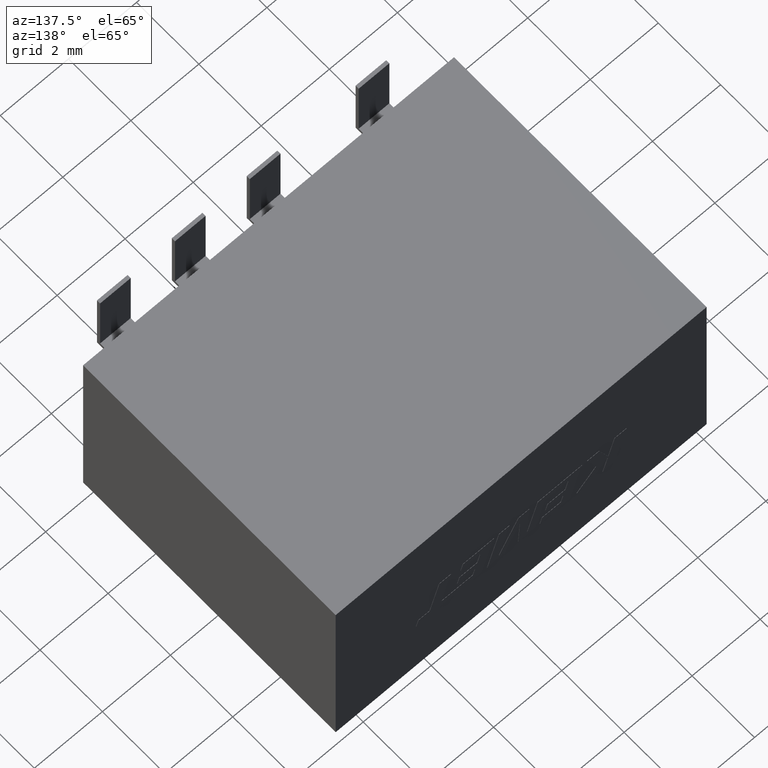
[diagram: clean part render]
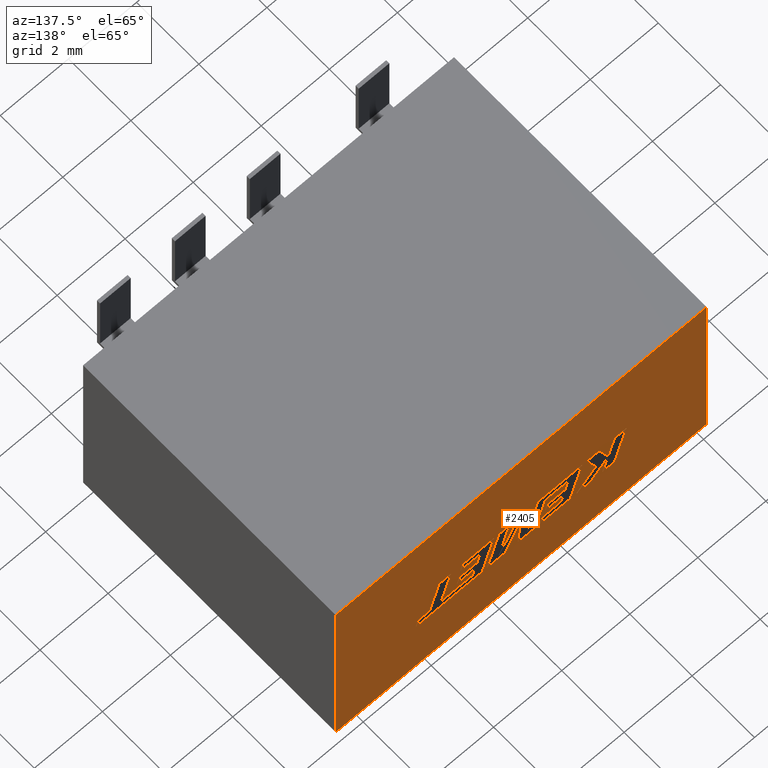
[diagram: same view with one face highlighted and labeled with its STEP entity id]
A machine part, auxiliary view. The second image highlights one B-rep face of the part: STEP entity #2405.
In plain terms, the highlighted planar face has unit normal (0, -1, 0).
Its self-contained STEP definition (entity closure, byte-faithful):
#8 = CARTESIAN_POINT ( 'NONE',  ( 5.539390621562711600, 8.099999999999999600, -4.005847300287459900 ) ) ;
#14 = EDGE_CURVE ( 'NONE', #2080, #327, #1104, .T. ) ;
#26 = CARTESIAN_POINT ( 'NONE',  ( 5.921493520004887900, 8.099999999999999600, -4.005847300287459900 ) ) ;
#50 = VECTOR ( 'NONE', #1758, 1000.000000000000100 ) ;
#57 = CARTESIAN_POINT ( 'NONE',  ( 5.536347990406461900, 8.099999999999999600, -2.796156569781385000 ) ) ;
#60 = ORIENTED_EDGE ( 'NONE', *, *, #3112, .F. ) ;
#65 = VERTEX_POINT ( 'NONE', #4349 ) ;
#73 = CARTESIAN_POINT ( 'NONE',  ( 8.141397164137124800, 8.099999999999999600, -3.772278509415951200 ) ) ;
#79 = EDGE_CURVE ( 'NONE', #1904, #2804, #431, .T. ) ;
#92 = DIRECTION ( 'NONE',  ( 0.2732148821745935000, 0.0000000000000000000, -0.9619530280415582400 ) ) ;
#100 = LINE ( 'NONE', #185, #2055 ) ;
#128 = DIRECTION ( 'NONE',  ( -1.000000000000000000, 0.0000000000000000000, 0.0000000000000000000 ) ) ;
#130 = DIRECTION ( 'NONE',  ( 1.000000000000000000, 0.0000000000000000000, 0.0000000000000000000 ) ) ;
#134 = CARTESIAN_POINT ( 'NONE',  ( 2.710509850445662000, 8.099999999999999600, -4.005847300287459900 ) ) ;
#136 = ORIENTED_EDGE ( 'NONE', *, *, #762, .F. ) ;
#145 = CARTESIAN_POINT ( 'NONE',  ( 6.874775397190843400, 8.099999999999999600, -3.775548420996927200 ) ) ;
#151 = CARTESIAN_POINT ( 'NONE',  ( 5.796859528522962700, 8.099999999999999600, -2.796156569781385000 ) ) ;
#156 = EDGE_CURVE ( 'NONE', #2746, #2903, #3197, .T. ) ;
#160 = ORIENTED_EDGE ( 'NONE', *, *, #4494, .F. ) ;
#168 = DIRECTION ( 'NONE',  ( 1.000000000000000000, 0.0000000000000000000, 0.0000000000000000000 ) ) ;
#172 = ORIENTED_EDGE ( 'NONE', *, *, #3033, .F. ) ;
#180 = CARTESIAN_POINT ( 'NONE',  ( 5.213855259948116900, 8.099999999999999600, -2.796156569781385000 ) ) ;
#185 = CARTESIAN_POINT ( 'NONE',  ( 6.107615152295324800, 8.099999999999999600, -3.878298679620998200 ) ) ;
#219 = VERTEX_POINT ( 'NONE', #576 ) ;
#234 = EDGE_CURVE ( 'NONE', #327, #3218, #1947, .T. ) ;
#261 = LINE ( 'NONE', #2111, #3396 ) ;
#293 = VECTOR ( 'NONE', #3123, 1000.000000000000000 ) ;
#294 = EDGE_CURVE ( 'NONE', #2649, #3470, #2526, .T. ) ;
#306 = CARTESIAN_POINT ( 'NONE',  ( 3.526825435563525300, 8.099999999999999600, -2.796156569781385000 ) ) ;
#311 = VECTOR ( 'NONE', #3831, 1000.000000000000000 ) ;
#313 = ORIENTED_EDGE ( 'NONE', *, *, #3370, .F. ) ;
#318 = LINE ( 'NONE', #1277, #2691 ) ;
#327 = VERTEX_POINT ( 'NONE', #3824 ) ;
#336 = VERTEX_POINT ( 'NONE', #2452 ) ;
#344 = VECTOR ( 'NONE', #1712, 1000.000000000000100 ) ;
#349 = VECTOR ( 'NONE', #128, 1000.000000000000000 ) ;
#351 = CARTESIAN_POINT ( 'NONE',  ( 4.740762688357050600, 8.099999999999999600, -3.550586596489033700 ) ) ;
#352 = LINE ( 'NONE', #3845, #4388 ) ;
#355 = DIRECTION ( 'NONE',  ( 0.7145695586381791700, -0.0000000000000000000, -0.6995643972270443300 ) ) ;
#358 = VERTEX_POINT ( 'NONE', #3511 ) ;
#361 = EDGE_CURVE ( 'NONE', #391, #4439, #3943, .T. ) ;
#386 = EDGE_CURVE ( 'NONE', #3212, #4302, #3178, .T. ) ;
#391 = VERTEX_POINT ( 'NONE', #799 ) ;
#396 = PLANE ( 'NONE',  #1085 ) ;
#402 = CARTESIAN_POINT ( 'NONE',  ( 3.421187798171672100, 8.099999999999999600, -4.005847300287459900 ) ) ;
#407 = VECTOR ( 'NONE', #3675, 1000.000000000000200 ) ;
#412 = CARTESIAN_POINT ( 'NONE',  ( 7.860832130047842100, 8.099999999999999600, -2.796156569781384600 ) ) ;
#417 = CARTESIAN_POINT ( 'NONE',  ( 8.472599322535460300, 8.099999999999999600, -3.772252215782888800 ) ) ;
#421 = EDGE_CURVE ( 'NONE', #1011, #2978, #1184, .T. ) ;
#430 = CARTESIAN_POINT ( 'NONE',  ( 5.921493520004887900, 8.099999999999999600, -4.005847300287459900 ) ) ;
#431 = LINE ( 'NONE', #151, #3078 ) ;
#472 = CARTESIAN_POINT ( 'NONE',  ( 4.742667991162439200, 8.099999999999999600, -3.026300965061103500 ) ) ;
#487 = CARTESIAN_POINT ( 'NONE',  ( 5.492869375179180800, 8.099999999999999600, -3.141628699794906800 ) ) ;
#488 = VERTEX_POINT ( 'NONE', #2528 ) ;
#489 = VERTEX_POINT ( 'NONE', #785 ) ;
#490 = VERTEX_POINT ( 'NONE', #1473 ) ;
#501 = CARTESIAN_POINT ( 'NONE',  ( 2.706846371486650900, 8.099999999999999600, -2.796156569781384600 ) ) ;
#522 = EDGE_CURVE ( 'NONE', #3521, #65, #571, .T. ) ;
#571 = LINE ( 'NONE', #4310, #868 ) ;
#576 = CARTESIAN_POINT ( 'NONE',  ( 6.659682158465106000, 8.099999999999999600, -3.026345103347022100 ) ) ;
#584 = DIRECTION ( 'NONE',  ( 1.000000000000000000, -0.0000000000000000000, -0.0000000000000000000 ) ) ;
#588 = CARTESIAN_POINT ( 'NONE',  ( 4.742667991162439200, 8.099999999999999600, -3.026300965061103500 ) ) ;
#600 = ORIENTED_EDGE ( 'NONE', *, *, #1828, .F. ) ;
#608 = CARTESIAN_POINT ( 'NONE',  ( 7.516237151367949600, 8.099999999999999600, -2.796156569781385500 ) ) ;
#609 = EDGE_CURVE ( 'NONE', #3145, #4472, #3828, .T. ) ;
#616 = VERTEX_POINT ( 'NONE', #1858 ) ;
#618 = EDGE_CURVE ( 'NONE', #489, #490, #4157, .T. ) ;
#621 = EDGE_CURVE ( 'NONE', #1958, #3756, #4223, .T. ) ;
#635 = CARTESIAN_POINT ( 'NONE',  ( 7.264560627435020700, 8.099999999999999600, -3.326956277028809300 ) ) ;
#646 = ORIENTED_EDGE ( 'NONE', *, *, #4050, .F. ) ;
#648 = EDGE_LOOP ( 'NONE', ( #2705, #1951, #1170, #3834 ) ) ;
#650 = VECTOR ( 'NONE', #3587, 1000.000000000000000 ) ;
#677 = LINE ( 'NONE', #73, #1674 ) ;
#692 = VECTOR ( 'NONE', #4190, 1000.000000000000000 ) ;
#703 = VERTEX_POINT ( 'NONE', #4446 ) ;
#718 = CARTESIAN_POINT ( 'NONE',  ( 5.274221726550668300, 8.099999999999999600, -3.873112430664818400 ) ) ;
#722 = CARTESIAN_POINT ( 'NONE',  ( 6.745501705062949300, 8.099999999999999600, -3.326956277028808800 ) ) ;
#731 = CARTESIAN_POINT ( 'NONE',  ( 7.163800270007336700, 8.099999999999999600, -2.796156569781385900 ) ) ;
#736 = CARTESIAN_POINT ( 'NONE',  ( 3.054950345114026100, 8.099999999999999600, -4.005847300287459900 ) ) ;
#748 = ORIENTED_EDGE ( 'NONE', *, *, #618, .F. ) ;
#750 = ORIENTED_EDGE ( 'NONE', *, *, #421, .F. ) ;
#762 = EDGE_CURVE ( 'NONE', #2804, #1011, #3272, .T. ) ;
#779 = EDGE_CURVE ( 'NONE', #1988, #3344, #1453, .T. ) ;
#785 = CARTESIAN_POINT ( 'NONE',  ( 2.895107208685131300, 8.099999999999999600, -3.452985804915531500 ) ) ;
#799 = CARTESIAN_POINT ( 'NONE',  ( 5.536347990406461900, 8.099999999999999600, -2.796156569781384600 ) ) ;
#804 = ORIENTED_EDGE ( 'NONE', *, *, #4086, .F. ) ;
#806 = ORIENTED_EDGE ( 'NONE', *, *, #1773, .F. ) ;
#814 = VECTOR ( 'NONE', #4445, 1000.000000000000200 ) ;
#830 = CARTESIAN_POINT ( 'NONE',  ( 2.362865651633439400, 8.099999999999999600, -2.796156569781385000 ) ) ;
#835 = DIRECTION ( 'NONE',  ( 0.2793947940814881500, 0.0000000000000000000, -0.9601763114346045800 ) ) ;
#837 = VERTEX_POINT ( 'NONE', #1628 ) ;
#838 = LINE ( 'NONE', #351, #3393 ) ;
#849 = CARTESIAN_POINT ( 'NONE',  ( 5.274221726550668300, 8.099999999999999600, -3.873112430664818400 ) ) ;
#857 = DIRECTION ( 'NONE',  ( 0.9999891854650020400, 0.0000000000000000000, 0.004650693823681494600 ) ) ;
#866 = CARTESIAN_POINT ( 'NONE',  ( 6.597792921863392800, 8.099999999999999600, -4.005847300287459900 ) ) ;
#868 = VECTOR ( 'NONE', #2174, 1000.000000000000000 ) ;
#871 = VECTOR ( 'NONE', #2748, 1000.000000000000100 ) ;
#880 = EDGE_CURVE ( 'NONE', #2254, #1425, #1130, .T. ) ;
#913 = EDGE_CURVE ( 'NONE', #3344, #489, #3822, .T. ) ;
#926 = CARTESIAN_POINT ( 'NONE',  ( 0.0000000000000000000, 8.099999999999999600, -6.000000000000000000 ) ) ;
#927 = LINE ( 'NONE', #2165, #3911 ) ;
#929 = ORIENTED_EDGE ( 'NONE', *, *, #1711, .F. ) ;
#947 = VECTOR ( 'NONE', #2952, 1000.000000000000100 ) ;
#954 = EDGE_CURVE ( 'NONE', #1551, #2649, #1977, .T. ) ;
#960 = ORIENTED_EDGE ( 'NONE', *, *, #880, .F. ) ;
#980 = DIRECTION ( 'NONE',  ( -1.000000000000000000, 0.0000000000000000000, 0.0000000000000000000 ) ) ;
#989 = VECTOR ( 'NONE', #2798, 1000.000000000000100 ) ;
#990 = CARTESIAN_POINT ( 'NONE',  ( 7.516237151367949600, 8.099999999999999600, -2.796156569781385500 ) ) ;
#993 = ORIENTED_EDGE ( 'NONE', *, *, #2934, .F. ) ;
#1004 = CARTESIAN_POINT ( 'NONE',  ( 4.009887795221451300, 8.099999999999999600, -4.005847300287459900 ) ) ;
#1011 = VERTEX_POINT ( 'NONE', #4201 ) ;
#1021 = CARTESIAN_POINT ( 'NONE',  ( 6.107615152295325700, 8.099999999999999600, -3.878298679620999100 ) ) ;
#1079 = VECTOR ( 'NONE', #4326, 1000.000000000000200 ) ;
#1085 = AXIS2_PLACEMENT_3D ( 'NONE', #3155, #3499, #1732 ) ;
#1104 = LINE ( 'NONE', #4312, #2003 ) ;
#1130 = LINE ( 'NONE', #2501, #344 ) ;
#1133 = VECTOR ( 'NONE', #4321, 1000.000000000000100 ) ;
#1134 = CARTESIAN_POINT ( 'NONE',  ( 6.452055646963577500, 8.099999999999999600, -4.005847300287459900 ) ) ;
#1161 = DIRECTION ( 'NONE',  ( -1.000000000000000000, -0.0000000000000000000, -0.0000000000000000000 ) ) ;
#1170 = ORIENTED_EDGE ( 'NONE', *, *, #4264, .T. ) ;
#1184 = LINE ( 'NONE', #1134, #349 ) ;
#1185 = CARTESIAN_POINT ( 'NONE',  ( 8.539730510658420900, 8.099999999999999600, -4.005847300287459900 ) ) ;
#1188 = EDGE_CURVE ( 'NONE', #4122, #219, #352, .T. ) ;
#1193 = VECTOR ( 'NONE', #1406, 1000.000000000000200 ) ;
#1209 = VERTEX_POINT ( 'NONE', #402 ) ;
#1211 = VECTOR ( 'NONE', #4146, 1000.000000000000100 ) ;
#1224 = EDGE_CURVE ( 'NONE', #4462, #703, #2272, .T. ) ;
#1235 = VECTOR ( 'NONE', #2844, 1000.000000000000000 ) ;
#1245 = EDGE_CURVE ( 'NONE', #3150, #2256, #4111, .T. ) ;
#1256 = ORIENTED_EDGE ( 'NONE', *, *, #2788, .F. ) ;
#1263 = CARTESIAN_POINT ( 'NONE',  ( 4.964996230130207500, 8.099999999999999600, -2.796156569781383700 ) ) ;
#1266 = CARTESIAN_POINT ( 'NONE',  ( 4.903566767372225900, 8.099999999999999600, -4.005847300287459900 ) ) ;
#1270 = DIRECTION ( 'NONE',  ( 1.000000000000000000, 0.0000000000000000000, 0.0000000000000000000 ) ) ;
#1277 = CARTESIAN_POINT ( 'NONE',  ( 7.860832130047842100, 8.099999999999999600, -2.796156569781385500 ) ) ;
#1289 = ORIENTED_EDGE ( 'NONE', *, *, #156, .F. ) ;
#1292 = CARTESIAN_POINT ( 'NONE',  ( 6.104260642330714900, 8.099999999999999600, -2.796156569781384600 ) ) ;
#1307 = VECTOR ( 'NONE', #1668, 1000.000000000000100 ) ;
#1312 = VERTEX_POINT ( 'NONE', #1512 ) ;
#1323 = CARTESIAN_POINT ( 'NONE',  ( 7.328436088013573300, 8.099999999999999600, -3.550546136388770300 ) ) ;
#1324 = ORIENTED_EDGE ( 'NONE', *, *, #361, .F. ) ;
#1338 = CARTESIAN_POINT ( 'NONE',  ( 4.287021077339293400, 8.099999999999999600, -3.775588881096553400 ) ) ;
#1339 = EDGE_CURVE ( 'NONE', #2374, #1209, #2672, .T. ) ;
#1341 = CARTESIAN_POINT ( 'NONE',  ( 3.819285739512695300, 8.099999999999999600, -4.005847300287459900 ) ) ;
#1361 = CARTESIAN_POINT ( 'NONE',  ( 3.254565756188929200, 8.099999999999999600, -3.452985804915538600 ) ) ;
#1399 = CARTESIAN_POINT ( 'NONE',  ( 3.054950345114026100, 8.099999999999999600, -4.005847300287459900 ) ) ;
#1404 = VECTOR ( 'NONE', #3304, 1000.000000000000000 ) ;
#1406 = DIRECTION ( 'NONE',  ( 0.2746459304916855600, 0.0000000000000000000, -0.9615454294334491200 ) ) ;
#1425 = VERTEX_POINT ( 'NONE', #588 ) ;
#1427 = DIRECTION ( 'NONE',  ( -1.000000000000000000, 0.0000000000000000000, 0.0000000000000000000 ) ) ;
#1433 = EDGE_LOOP ( 'NONE', ( #600, #4508, #3460, #3695, #313, #2637, #3514, #1635, #3249, #2370, #4199, #4359, #929, #1256, #4479, #3101, #4451 ) ) ;
#1449 = VECTOR ( 'NONE', #1596, 1000.000000000000000 ) ;
#1453 = LINE ( 'NONE', #2648, #2209 ) ;
#1455 = DIRECTION ( 'NONE',  ( 0.2762033010287792100, 0.0000000000000000000, -0.9610992334305577000 ) ) ;
#1464 = VECTOR ( 'NONE', #3223, 1000.000000000000100 ) ;
#1473 = CARTESIAN_POINT ( 'NONE',  ( 3.158756243511991400, 8.099999999999999600, -2.796156569781385000 ) ) ;
#1481 = DIRECTION ( 'NONE',  ( 1.000000000000000000, 0.0000000000000000000, 0.0000000000000000000 ) ) ;
#1497 = CARTESIAN_POINT ( 'NONE',  ( 3.158756243511991400, 8.099999999999999600, -2.796156569781385000 ) ) ;
#1502 = DIRECTION ( 'NONE',  ( -1.000000000000000000, -0.0000000000000000000, -0.0000000000000000000 ) ) ;
#1509 = EDGE_CURVE ( 'NONE', #3656, #2139, #2853, .T. ) ;
#1512 = CARTESIAN_POINT ( 'NONE',  ( 8.472599322535460300, 8.099999999999999600, -3.772252215782888400 ) ) ;
#1551 = VERTEX_POINT ( 'NONE', #1263 ) ;
#1583 = CARTESIAN_POINT ( 'NONE',  ( 8.141397164137124800, 8.099999999999999600, -3.772278509415951200 ) ) ;
#1591 = EDGE_CURVE ( 'NONE', #490, #3150, #2856, .T. ) ;
#1596 = DIRECTION ( 'NONE',  ( -0.0000000000000000000, -0.0000000000000000000, 1.000000000000000000 ) ) ;
#1604 = ORIENTED_EDGE ( 'NONE', *, *, #913, .F. ) ;
#1628 = CARTESIAN_POINT ( 'NONE',  ( 0.0000000000000000000, 8.099999999999999600, 0.0000000000000000000 ) ) ;
#1635 = ORIENTED_EDGE ( 'NONE', *, *, #3971, .F. ) ;
#1645 = FACE_BOUND ( 'NONE', #1433, .T. ) ;
#1654 = ORIENTED_EDGE ( 'NONE', *, *, #609, .F. ) ;
#1663 = CARTESIAN_POINT ( 'NONE',  ( 4.157747385208506500, 8.099999999999999600, -3.326956277031324600 ) ) ;
#1668 = DIRECTION ( 'NONE',  ( 0.2740217765954066600, 0.0000000000000000000, -0.9617234872620595800 ) ) ;
#1674 = VECTOR ( 'NONE', #3537, 1000.000000000000200 ) ;
#1687 = VECTOR ( 'NONE', #3450, 1000.000000000000000 ) ;
#1711 = EDGE_CURVE ( 'NONE', #2714, #1312, #677, .T. ) ;
#1712 = DIRECTION ( 'NONE',  ( -0.2762517575166136800, 0.0000000000000000000, 0.9610853065513914600 ) ) ;
#1724 = DIRECTION ( 'NONE',  ( -1.000000000000000000, 0.0000000000000000000, 0.0000000000000000000 ) ) ;
#1732 = DIRECTION ( 'NONE',  ( 0.0000000000000000000, -0.0000000000000000000, -1.000000000000000000 ) ) ;
#1744 = LINE ( 'NONE', #472, #2805 ) ;
#1758 = DIRECTION ( 'NONE',  ( 0.2755520632520559500, -0.0000000000000000000, -0.9612861490927323600 ) ) ;
#1760 = VERTEX_POINT ( 'NONE', #3886 ) ;
#1765 = CARTESIAN_POINT ( 'NONE',  ( 7.796883105654374400, 8.099999999999999600, -3.772278509418967000 ) ) ;
#1773 = EDGE_CURVE ( 'NONE', #65, #3685, #2519, .T. ) ;
#1785 = CARTESIAN_POINT ( 'NONE',  ( 6.809303601826474800, 8.099999999999999600, -3.550546136388769800 ) ) ;
#1795 = EDGE_CURVE ( 'NONE', #2419, #4030, #2126, .T. ) ;
#1799 = EDGE_LOOP ( 'NONE', ( #750, #136, #3799, #2454, #1324, #2972, #3487, #2195, #172, #3741, #3577, #806, #3938, #3736, #3477, #646, #993, #1289, #160, #960, #2151, #1856, #804 ) ) ;
#1828 = EDGE_CURVE ( 'NONE', #358, #616, #3953, .T. ) ;
#1846 = VERTEX_POINT ( 'NONE', #4306 ) ;
#1856 = ORIENTED_EDGE ( 'NONE', *, *, #386, .F. ) ;
#1858 = CARTESIAN_POINT ( 'NONE',  ( 7.429122881626447800, 8.099999999999999600, -3.773988868118182800 ) ) ;
#1904 = VERTEX_POINT ( 'NONE', #3948 ) ;
#1919 = CARTESIAN_POINT ( 'NONE',  ( 0.0000000000000000000, 8.099999999999999600, -6.000000000000000000 ) ) ;
#1947 = LINE ( 'NONE', #1323, #2742 ) ;
#1951 = ORIENTED_EDGE ( 'NONE', *, *, #3143, .T. ) ;
#1958 = VERTEX_POINT ( 'NONE', #1185 ) ;
#1977 = LINE ( 'NONE', #2564, #1079 ) ;
#1988 = VERTEX_POINT ( 'NONE', #830 ) ;
#1996 = CARTESIAN_POINT ( 'NONE',  ( 4.072082322620223000, 8.099999999999999600, -3.026300965061103500 ) ) ;
#2003 = VECTOR ( 'NONE', #3291, 1000.000000000000100 ) ;
#2015 = DIRECTION ( 'NONE',  ( -1.000000000000000000, 0.0000000000000000000, 0.0000000000000000000 ) ) ;
#2050 = CARTESIAN_POINT ( 'NONE',  ( 6.249843432247395500, 8.099999999999999600, -2.796156569781385500 ) ) ;
#2053 = EDGE_CURVE ( 'NONE', #2139, #837, #3541, .T. ) ;
#2055 = VECTOR ( 'NONE', #2819, 1000.000000000000100 ) ;
#2056 = DIRECTION ( 'NONE',  ( -1.000000000000000000, 0.0000000000000000000, 0.0000000000000000000 ) ) ;
#2074 = CARTESIAN_POINT ( 'NONE',  ( 5.213855259948116900, 8.099999999999999600, -2.796156569781385000 ) ) ;
#2077 = EDGE_CURVE ( 'NONE', #488, #3521, #2833, .T. ) ;
#2080 = VERTEX_POINT ( 'NONE', #635 ) ;
#2084 = DIRECTION ( 'NONE',  ( -0.05596501978068177400, 0.0000000000000000000, 0.9984327301130245800 ) ) ;
#2107 = CARTESIAN_POINT ( 'NONE',  ( 2.895107208685131700, 8.099999999999999600, -3.452985804915531100 ) ) ;
#2111 = CARTESIAN_POINT ( 'NONE',  ( 3.819285739512695300, 8.099999999999999600, -4.005847300287459900 ) ) ;
#2126 = LINE ( 'NONE', #2554, #4172 ) ;
#2133 = VECTOR ( 'NONE', #857, 1000.000000000000100 ) ;
#2136 = DIRECTION ( 'NONE',  ( 0.9999960426590096500, 0.0000000000000000000, 0.002813301676023191700 ) ) ;
#2139 = VERTEX_POINT ( 'NONE', #926 ) ;
#2151 = ORIENTED_EDGE ( 'NONE', *, *, #2185, .F. ) ;
#2164 = CARTESIAN_POINT ( 'NONE',  ( 5.492869375179180800, 8.099999999999999600, -3.141628699794907200 ) ) ;
#2165 = CARTESIAN_POINT ( 'NONE',  ( 6.745501705062949300, 8.099999999999999600, -3.326956277028808800 ) ) ;
#2169 = CARTESIAN_POINT ( 'NONE',  ( 4.009887795221451300, 8.099999999999999600, -4.005847300287459900 ) ) ;
#2174 = DIRECTION ( 'NONE',  ( 1.000000000000000000, 0.0000000000000000000, 0.0000000000000000000 ) ) ;
#2180 = VECTOR ( 'NONE', #1481, 1000.000000000000000 ) ;
#2185 = EDGE_CURVE ( 'NONE', #4302, #2254, #2200, .T. ) ;
#2195 = ORIENTED_EDGE ( 'NONE', *, *, #954, .F. ) ;
#2200 = LINE ( 'NONE', #8, #4043 ) ;
#2209 = VECTOR ( 'NONE', #584, 1000.000000000000000 ) ;
#2214 = VECTOR ( 'NONE', #4485, 1000.000000000000000 ) ;
#2226 = CARTESIAN_POINT ( 'NONE',  ( 7.429122881626447000, 8.099999999999999600, -3.773988868118182800 ) ) ;
#2242 = VERTEX_POINT ( 'NONE', #2378 ) ;
#2254 = VERTEX_POINT ( 'NONE', #4155 ) ;
#2256 = VERTEX_POINT ( 'NONE', #1361 ) ;
#2272 = LINE ( 'NONE', #1004, #2616 ) ;
#2285 = VECTOR ( 'NONE', #2084, 1000.000000000000200 ) ;
#2290 = CARTESIAN_POINT ( 'NONE',  ( 4.221549281973500100, 8.099999999999999600, -3.550586596489033700 ) ) ;
#2298 = DIRECTION ( 'NONE',  ( -1.000000000000000000, -0.0000000000000000000, -0.0000000000000000000 ) ) ;
#2333 = LINE ( 'NONE', #608, #3376 ) ;
#2335 = VECTOR ( 'NONE', #1502, 1000.000000000000000 ) ;
#2340 = LINE ( 'NONE', #1266, #3444 ) ;
#2370 = ORIENTED_EDGE ( 'NONE', *, *, #2611, .F. ) ;
#2374 = VERTEX_POINT ( 'NONE', #1341 ) ;
#2378 = CARTESIAN_POINT ( 'NONE',  ( 4.676887227777093000, 8.099999999999999600, -3.326956277031324100 ) ) ;
#2405 = ADVANCED_FACE ( 'NONE', ( #4476, #3222, #4263, #1645 ), #396, .F. ) ;
#2407 = VECTOR ( 'NONE', #92, 1000.000000000000100 ) ;
#2410 = VERTEX_POINT ( 'NONE', #412 ) ;
#2419 = VERTEX_POINT ( 'NONE', #2050 ) ;
#2423 = ORIENTED_EDGE ( 'NONE', *, *, #1591, .F. ) ;
#2452 = CARTESIAN_POINT ( 'NONE',  ( 2.907079720547294700, 8.099999999999999600, -3.489988403873880000 ) ) ;
#2454 = ORIENTED_EDGE ( 'NONE', *, *, #3728, .F. ) ;
#2455 = VECTOR ( 'NONE', #2490, 1000.000000000000200 ) ;
#2459 = CARTESIAN_POINT ( 'NONE',  ( 7.796883105654374400, 8.099999999999999600, -3.772278509418966100 ) ) ;
#2473 = EDGE_CURVE ( 'NONE', #1209, #336, #3162, .T. ) ;
#2490 = DIRECTION ( 'NONE',  ( -0.4443210308329211300, 0.0000000000000000000, 0.8958676361826953800 ) ) ;
#2501 = CARTESIAN_POINT ( 'NONE',  ( 5.024226136761629200, 8.099999999999999600, -4.005847300287459900 ) ) ;
#2519 = LINE ( 'NONE', #4271, #2407 ) ;
#2526 = LINE ( 'NONE', #718, #2285 ) ;
#2528 = CARTESIAN_POINT ( 'NONE',  ( 4.221549281973500100, 8.099999999999999600, -3.550586596489033700 ) ) ;
#2554 = CARTESIAN_POINT ( 'NONE',  ( 6.249843432247395500, 8.099999999999999600, -2.796156569781385500 ) ) ;
#2564 = CARTESIAN_POINT ( 'NONE',  ( 4.964996230130208400, 8.099999999999999600, -2.796156569781385000 ) ) ;
#2580 = LINE ( 'NONE', #3931, #2180 ) ;
#2598 = CARTESIAN_POINT ( 'NONE',  ( 6.809303601826474800, 8.099999999999999600, -3.550546136388770300 ) ) ;
#2611 = EDGE_CURVE ( 'NONE', #3756, #2419, #4365, .T. ) ;
#2616 = VECTOR ( 'NONE', #4180, 1000.000000000000100 ) ;
#2631 = LINE ( 'NONE', #2074, #1687 ) ;
#2637 = ORIENTED_EDGE ( 'NONE', *, *, #2942, .F. ) ;
#2648 = CARTESIAN_POINT ( 'NONE',  ( 2.706846371486650900, 8.099999999999999600, -2.796156569781385000 ) ) ;
#2649 = VERTEX_POINT ( 'NONE', #849 ) ;
#2660 = VECTOR ( 'NONE', #2830, 1000.000000000000200 ) ;
#2672 = LINE ( 'NONE', #4338, #2335 ) ;
#2674 = CARTESIAN_POINT ( 'NONE',  ( 6.104260642330714900, 8.099999999999999600, -2.796156569781385000 ) ) ;
#2690 = EDGE_CURVE ( 'NONE', #3218, #358, #3651, .T. ) ;
#2691 = VECTOR ( 'NONE', #4408, 1000.000000000000100 ) ;
#2693 = ORIENTED_EDGE ( 'NONE', *, *, #4355, .F. ) ;
#2705 = ORIENTED_EDGE ( 'NONE', *, *, #2053, .T. ) ;
#2714 = VERTEX_POINT ( 'NONE', #1583 ) ;
#2719 = CARTESIAN_POINT ( 'NONE',  ( 6.659682158465106900, 8.099999999999999600, -3.026345103347022100 ) ) ;
#2740 = VECTOR ( 'NONE', #1455, 1000.000000000000000 ) ;
#2742 = VECTOR ( 'NONE', #2015, 1000.000000000000000 ) ;
#2746 = VERTEX_POINT ( 'NONE', #4395 ) ;
#2748 = DIRECTION ( 'NONE',  ( -0.2762033010252013000, -0.0000000000000000000, 0.9610992334315858800 ) ) ;
#2788 = EDGE_CURVE ( 'NONE', #2410, #2714, #318, .T. ) ;
#2798 = DIRECTION ( 'NONE',  ( -0.2763173343570092300, 0.0000000000000000000, 0.9610664548998870700 ) ) ;
#2804 = VERTEX_POINT ( 'NONE', #1292 ) ;
#2805 = VECTOR ( 'NONE', #1427, 1000.000000000000000 ) ;
#2819 = DIRECTION ( 'NONE',  ( -0.2760118818968546600, 0.0000000000000000000, 0.9611542233438693500 ) ) ;
#2824 = VERTEX_POINT ( 'NONE', #990 ) ;
#2830 = DIRECTION ( 'NONE',  ( 0.2755265765475188900, -0.0000000000000000000, -0.9612934544747530100 ) ) ;
#2833 = LINE ( 'NONE', #2290, #814 ) ;
#2844 = DIRECTION ( 'NONE',  ( 0.05375259206908353200, 0.0000000000000000000, -0.9985542843760947300 ) ) ;
#2848 = CARTESIAN_POINT ( 'NONE',  ( 3.254565756188929200, 8.099999999999999600, -3.452985804915539100 ) ) ;
#2853 = LINE ( 'NONE', #1919, #4389 ) ;
#2856 = LINE ( 'NONE', #306, #3843 ) ;
#2903 = VERTEX_POINT ( 'NONE', #3762 ) ;
#2934 = EDGE_CURVE ( 'NONE', #2903, #2242, #4458, .T. ) ;
#2942 = EDGE_CURVE ( 'NONE', #219, #4423, #4184, .T. ) ;
#2952 = DIRECTION ( 'NONE',  ( -0.2764273280489754600, 0.0000000000000000000, 0.9610348236706638400 ) ) ;
#2972 = ORIENTED_EDGE ( 'NONE', *, *, #4440, .F. ) ;
#2978 = VERTEX_POINT ( 'NONE', #26 ) ;
#2981 = CARTESIAN_POINT ( 'NONE',  ( 2.710509850445662000, 8.099999999999999600, -4.005847300287459900 ) ) ;
#3008 = CARTESIAN_POINT ( 'NONE',  ( 7.229117581359974800, 8.099999999999999600, -3.026345103347022100 ) ) ;
#3012 = LINE ( 'NONE', #4475, #871 ) ;
#3033 = EDGE_CURVE ( 'NONE', #703, #1551, #3969, .T. ) ;
#3060 = EDGE_CURVE ( 'NONE', #2256, #2374, #261, .T. ) ;
#3069 = LINE ( 'NONE', #430, #2455 ) ;
#3072 = LINE ( 'NONE', #3500, #1193 ) ;
#3078 = VECTOR ( 'NONE', #168, 1000.000000000000000 ) ;
#3101 = ORIENTED_EDGE ( 'NONE', *, *, #4409, .F. ) ;
#3112 = EDGE_CURVE ( 'NONE', #336, #3145, #3292, .T. ) ;
#3123 = DIRECTION ( 'NONE',  ( 0.2729786930695544100, 0.0000000000000000000, -0.9620200793798631100 ) ) ;
#3143 = EDGE_CURVE ( 'NONE', #837, #1760, #2580, .T. ) ;
#3145 = VERTEX_POINT ( 'NONE', #1399 ) ;
#3150 = VERTEX_POINT ( 'NONE', #3972 ) ;
#3155 = CARTESIAN_POINT ( 'NONE',  ( 0.0000000000000000000, 8.099999999999999600, 0.0000000000000000000 ) ) ;
#3162 = LINE ( 'NONE', #4194, #650 ) ;
#3171 = CARTESIAN_POINT ( 'NONE',  ( 7.163800270007336700, 8.099999999999999600, -2.796156569781385900 ) ) ;
#3178 = LINE ( 'NONE', #2164, #1235 ) ;
#3197 = LINE ( 'NONE', #1996, #1307 ) ;
#3212 = VERTEX_POINT ( 'NONE', #487 ) ;
#3218 = VERTEX_POINT ( 'NONE', #1785 ) ;
#3220 = DIRECTION ( 'NONE',  ( 0.4668459304955215900, 0.0000000000000000000, -0.8843386665637609200 ) ) ;
#3222 = FACE_OUTER_BOUND ( 'NONE', #648, .T. ) ;
#3223 = DIRECTION ( 'NONE',  ( -0.3829140317376945600, -0.0000000000000000000, -0.9237839814038689700 ) ) ;
#3249 = ORIENTED_EDGE ( 'NONE', *, *, #1795, .F. ) ;
#3266 = CARTESIAN_POINT ( 'NONE',  ( 7.495815837290888500, 8.099999999999999600, -4.005847300287459900 ) ) ;
#3272 = LINE ( 'NONE', #2674, #407 ) ;
#3291 = DIRECTION ( 'NONE',  ( 0.2746918797667264900, 0.0000000000000000000, -0.9615323037684290200 ) ) ;
#3292 = LINE ( 'NONE', #736, #50 ) ;
#3304 = DIRECTION ( 'NONE',  ( -1.000000000000000000, 0.0000000000000000000, 0.0000000000000000000 ) ) ;
#3326 = VECTOR ( 'NONE', #3220, 1000.000000000000200 ) ;
#3344 = VERTEX_POINT ( 'NONE', #501 ) ;
#3365 = EDGE_CURVE ( 'NONE', #616, #3637, #3847, .T. ) ;
#3370 = EDGE_CURVE ( 'NONE', #4423, #2080, #927, .T. ) ;
#3371 = CARTESIAN_POINT ( 'NONE',  ( 5.539390621562711600, 8.099999999999999600, -4.005847300287459900 ) ) ;
#3372 = EDGE_LOOP ( 'NONE', ( #2693, #1654, #60, #3504, #3928, #3529, #3884, #2423, #748, #1604, #4191 ) ) ;
#3376 = VECTOR ( 'NONE', #1270, 1000.000000000000000 ) ;
#3393 = VECTOR ( 'NONE', #1724, 1000.000000000000000 ) ;
#3396 = VECTOR ( 'NONE', #355, 1000.000000000000000 ) ;
#3419 = CARTESIAN_POINT ( 'NONE',  ( 10.90000000000000000, 8.099999999999999600, -6.000000000000000000 ) ) ;
#3431 = VECTOR ( 'NONE', #1161, 1000.000000000000000 ) ;
#3441 = VECTOR ( 'NONE', #2136, 999.9999999999998900 ) ;
#3444 = VECTOR ( 'NONE', #980, 1000.000000000000000 ) ;
#3450 = DIRECTION ( 'NONE',  ( 1.000000000000000000, 0.0000000000000000000, 0.0000000000000000000 ) ) ;
#3460 = ORIENTED_EDGE ( 'NONE', *, *, #234, .F. ) ;
#3470 = VERTEX_POINT ( 'NONE', #180 ) ;
#3477 = ORIENTED_EDGE ( 'NONE', *, *, #4434, .F. ) ;
#3487 = ORIENTED_EDGE ( 'NONE', *, *, #294, .F. ) ;
#3499 = DIRECTION ( 'NONE',  ( 0.0000000000000000000, -1.000000000000000000, 0.0000000000000000000 ) ) ;
#3500 = CARTESIAN_POINT ( 'NONE',  ( 4.676887227777093000, 8.099999999999999600, -3.326956277031324600 ) ) ;
#3504 = ORIENTED_EDGE ( 'NONE', *, *, #2473, .F. ) ;
#3511 = CARTESIAN_POINT ( 'NONE',  ( 6.874775397190843400, 8.099999999999999600, -3.775548420996927200 ) ) ;
#3514 = ORIENTED_EDGE ( 'NONE', *, *, #1188, .F. ) ;
#3521 = VERTEX_POINT ( 'NONE', #1338 ) ;
#3529 = ORIENTED_EDGE ( 'NONE', *, *, #3060, .F. ) ;
#3537 = DIRECTION ( 'NONE',  ( 0.9999999968487352000, 0.0000000000000000000, 7.938847109812746000E-005 ) ) ;
#3541 = LINE ( 'NONE', #4081, #1449 ) ;
#3577 = ORIENTED_EDGE ( 'NONE', *, *, #3782, .F. ) ;
#3587 = DIRECTION ( 'NONE',  ( -0.7059037656364863800, -0.0000000000000000000, 0.7083077534943611500 ) ) ;
#3621 = LINE ( 'NONE', #417, #2740 ) ;
#3637 = VERTEX_POINT ( 'NONE', #1765 ) ;
#3651 = LINE ( 'NONE', #2598, #4048 ) ;
#3656 = VERTEX_POINT ( 'NONE', #3419 ) ;
#3675 = DIRECTION ( 'NONE',  ( 0.2763139702539103600, 0.0000000000000000000, -0.9610674221107076100 ) ) ;
#3685 = VERTEX_POINT ( 'NONE', #3774 ) ;
#3695 = ORIENTED_EDGE ( 'NONE', *, *, #14, .F. ) ;
#3728 = EDGE_CURVE ( 'NONE', #4439, #1904, #100, .T. ) ;
#3736 = ORIENTED_EDGE ( 'NONE', *, *, #2077, .F. ) ;
#3741 = ORIENTED_EDGE ( 'NONE', *, *, #1224, .F. ) ;
#3744 = CARTESIAN_POINT ( 'NONE',  ( 10.90000000000000000, 8.099999999999999600, 0.0000000000000000000 ) ) ;
#3756 = VERTEX_POINT ( 'NONE', #4059 ) ;
#3762 = CARTESIAN_POINT ( 'NONE',  ( 4.157747385208506500, 8.099999999999999600, -3.326956277031324600 ) ) ;
#3774 = CARTESIAN_POINT ( 'NONE',  ( 4.903566767372225900, 8.099999999999999600, -4.005847300287459900 ) ) ;
#3782 = EDGE_CURVE ( 'NONE', #3685, #4462, #2340, .T. ) ;
#3799 = ORIENTED_EDGE ( 'NONE', *, *, #79, .F. ) ;
#3822 = LINE ( 'NONE', #2107, #2660 ) ;
#3824 = CARTESIAN_POINT ( 'NONE',  ( 7.328436088013573300, 8.099999999999999600, -3.550546136388770300 ) ) ;
#3828 = LINE ( 'NONE', #2981, #3431 ) ;
#3831 = DIRECTION ( 'NONE',  ( 1.000000000000000000, 0.0000000000000000000, 0.0000000000000000000 ) ) ;
#3834 = ORIENTED_EDGE ( 'NONE', *, *, #1509, .T. ) ;
#3843 = VECTOR ( 'NONE', #4466, 1000.000000000000000 ) ;
#3845 = CARTESIAN_POINT ( 'NONE',  ( 7.229117581359974800, 8.099999999999999600, -3.026345103347022100 ) ) ;
#3847 = LINE ( 'NONE', #2226, #2133 ) ;
#3884 = ORIENTED_EDGE ( 'NONE', *, *, #1245, .F. ) ;
#3886 = CARTESIAN_POINT ( 'NONE',  ( 10.90000000000000000, 8.099999999999999600, 0.0000000000000000000 ) ) ;
#3911 = VECTOR ( 'NONE', #130, 1000.000000000000000 ) ;
#3928 = ORIENTED_EDGE ( 'NONE', *, *, #1339, .F. ) ;
#3931 = CARTESIAN_POINT ( 'NONE',  ( 0.0000000000000000000, 8.099999999999999600, 0.0000000000000000000 ) ) ;
#3938 = ORIENTED_EDGE ( 'NONE', *, *, #522, .F. ) ;
#3943 = LINE ( 'NONE', #57, #3326 ) ;
#3948 = CARTESIAN_POINT ( 'NONE',  ( 5.796859528522962700, 8.099999999999999600, -2.796156569781385000 ) ) ;
#3953 = LINE ( 'NONE', #145, #3441 ) ;
#3969 = LINE ( 'NONE', #4225, #311 ) ;
#3971 = EDGE_CURVE ( 'NONE', #4030, #4122, #4163, .T. ) ;
#3972 = CARTESIAN_POINT ( 'NONE',  ( 3.526825435563525800, 8.099999999999999600, -2.796156569781384600 ) ) ;
#4030 = VERTEX_POINT ( 'NONE', #731 ) ;
#4043 = VECTOR ( 'NONE', #2056, 1000.000000000000000 ) ;
#4048 = VECTOR ( 'NONE', #835, 1000.000000000000100 ) ;
#4050 = EDGE_CURVE ( 'NONE', #2242, #1846, #3072, .T. ) ;
#4059 = CARTESIAN_POINT ( 'NONE',  ( 6.597792921863392800, 8.099999999999999600, -4.005847300287459900 ) ) ;
#4081 = CARTESIAN_POINT ( 'NONE',  ( 0.0000000000000000000, 8.099999999999999600, 0.0000000000000000000 ) ) ;
#4086 = EDGE_CURVE ( 'NONE', #2978, #3212, #3069, .T. ) ;
#4111 = LINE ( 'NONE', #2848, #1464 ) ;
#4122 = VERTEX_POINT ( 'NONE', #3008 ) ;
#4125 = LINE ( 'NONE', #2459, #989 ) ;
#4146 = DIRECTION ( 'NONE',  ( 0.2745159998572672700, 0.0000000000000000000, -0.9615825319869141200 ) ) ;
#4155 = CARTESIAN_POINT ( 'NONE',  ( 5.024226136761629200, 8.099999999999999600, -4.005847300287459900 ) ) ;
#4157 = LINE ( 'NONE', #1497, #1133 ) ;
#4158 = LINE ( 'NONE', #3744, #2214 ) ;
#4163 = LINE ( 'NONE', #3171, #293 ) ;
#4172 = VECTOR ( 'NONE', #4287, 1000.000000000000000 ) ;
#4180 = DIRECTION ( 'NONE',  ( -0.2765379750249956600, 0.0000000000000000000, 0.9610029908221279200 ) ) ;
#4184 = LINE ( 'NONE', #2719, #1211 ) ;
#4190 = DIRECTION ( 'NONE',  ( 1.000000000000000000, 0.0000000000000000000, 0.0000000000000000000 ) ) ;
#4191 = ORIENTED_EDGE ( 'NONE', *, *, #779, .F. ) ;
#4194 = CARTESIAN_POINT ( 'NONE',  ( 2.907079720547295100, 8.099999999999999600, -3.489988403873880900 ) ) ;
#4197 = DIRECTION ( 'NONE',  ( -1.000000000000000000, 0.0000000000000000000, 0.0000000000000000000 ) ) ;
#4199 = ORIENTED_EDGE ( 'NONE', *, *, #621, .F. ) ;
#4201 = CARTESIAN_POINT ( 'NONE',  ( 6.452055646963577500, 8.099999999999999600, -4.005847300287459900 ) ) ;
#4204 = EDGE_CURVE ( 'NONE', #2824, #2410, #2333, .T. ) ;
#4223 = LINE ( 'NONE', #3266, #1404 ) ;
#4225 = CARTESIAN_POINT ( 'NONE',  ( 4.749674943578084700, 8.099999999999999600, -2.796156569781385000 ) ) ;
#4263 = FACE_BOUND ( 'NONE', #3372, .T. ) ;
#4264 = EDGE_CURVE ( 'NONE', #1760, #3656, #4158, .T. ) ;
#4271 = CARTESIAN_POINT ( 'NONE',  ( 4.838168535821325600, 8.099999999999999600, -3.775588881096553400 ) ) ;
#4287 = DIRECTION ( 'NONE',  ( 1.000000000000000000, 0.0000000000000000000, -4.745091355267173500E-016 ) ) ;
#4302 = VERTEX_POINT ( 'NONE', #3371 ) ;
#4306 = CARTESIAN_POINT ( 'NONE',  ( 4.740762688357050600, 8.099999999999999600, -3.550586596489033700 ) ) ;
#4310 = CARTESIAN_POINT ( 'NONE',  ( 4.287021077339293400, 8.099999999999999600, -3.775588881096553400 ) ) ;
#4312 = CARTESIAN_POINT ( 'NONE',  ( 7.264560627435020700, 8.099999999999999600, -3.326956277028808800 ) ) ;
#4321 = DIRECTION ( 'NONE',  ( 0.3725077383644731000, -0.0000000000000000000, 0.9280290862136731900 ) ) ;
#4326 = DIRECTION ( 'NONE',  ( 0.2759782365590798800, 0.0000000000000000000, -0.9611638845408937400 ) ) ;
#4338 = CARTESIAN_POINT ( 'NONE',  ( 3.421187798171672500, 8.099999999999999600, -4.005847300287459900 ) ) ;
#4349 = CARTESIAN_POINT ( 'NONE',  ( 4.838168535821326400, 8.099999999999999600, -3.775588881096553900 ) ) ;
#4355 = EDGE_CURVE ( 'NONE', #4472, #1988, #3012, .T. ) ;
#4359 = ORIENTED_EDGE ( 'NONE', *, *, #4488, .F. ) ;
#4365 = LINE ( 'NONE', #866, #947 ) ;
#4388 = VECTOR ( 'NONE', #4197, 1000.000000000000000 ) ;
#4389 = VECTOR ( 'NONE', #2298, 1000.000000000000000 ) ;
#4395 = CARTESIAN_POINT ( 'NONE',  ( 4.072082322620223000, 8.099999999999999600, -3.026300965061103000 ) ) ;
#4408 = DIRECTION ( 'NONE',  ( 0.2762437428917415300, 0.0000000000000000000, -0.9610876102172795100 ) ) ;
#4409 = EDGE_CURVE ( 'NONE', #3637, #2824, #4125, .T. ) ;
#4423 = VERTEX_POINT ( 'NONE', #722 ) ;
#4434 = EDGE_CURVE ( 'NONE', #1846, #488, #838, .T. ) ;
#4439 = VERTEX_POINT ( 'NONE', #1021 ) ;
#4440 = EDGE_CURVE ( 'NONE', #3470, #391, #2631, .T. ) ;
#4445 = DIRECTION ( 'NONE',  ( 0.2793947940878236400, 0.0000000000000000000, -0.9601763114327610500 ) ) ;
#4446 = CARTESIAN_POINT ( 'NONE',  ( 3.661787499784831600, 8.099999999999999600, -2.796156569781385000 ) ) ;
#4451 = ORIENTED_EDGE ( 'NONE', *, *, #3365, .F. ) ;
#4458 = LINE ( 'NONE', #1663, #692 ) ;
#4462 = VERTEX_POINT ( 'NONE', #2169 ) ;
#4466 = DIRECTION ( 'NONE',  ( 1.000000000000000000, -0.0000000000000000000, -0.0000000000000000000 ) ) ;
#4472 = VERTEX_POINT ( 'NONE', #134 ) ;
#4475 = CARTESIAN_POINT ( 'NONE',  ( 2.362865651633439400, 8.099999999999999600, -2.796156569781385000 ) ) ;
#4476 = FACE_BOUND ( 'NONE', #1799, .T. ) ;
#4479 = ORIENTED_EDGE ( 'NONE', *, *, #4204, .F. ) ;
#4485 = DIRECTION ( 'NONE',  ( 0.0000000000000000000, 0.0000000000000000000, -1.000000000000000000 ) ) ;
#4488 = EDGE_CURVE ( 'NONE', #1312, #1958, #3621, .T. ) ;
#4494 = EDGE_CURVE ( 'NONE', #1425, #2746, #1744, .T. ) ;
#4508 = ORIENTED_EDGE ( 'NONE', *, *, #2690, .F. ) ;